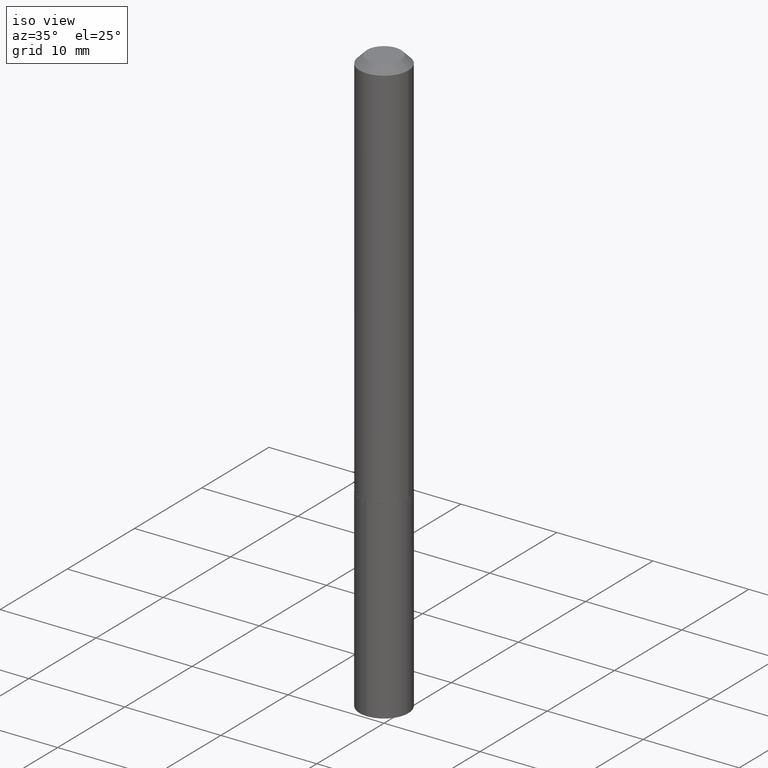
[diagram: clean part render]
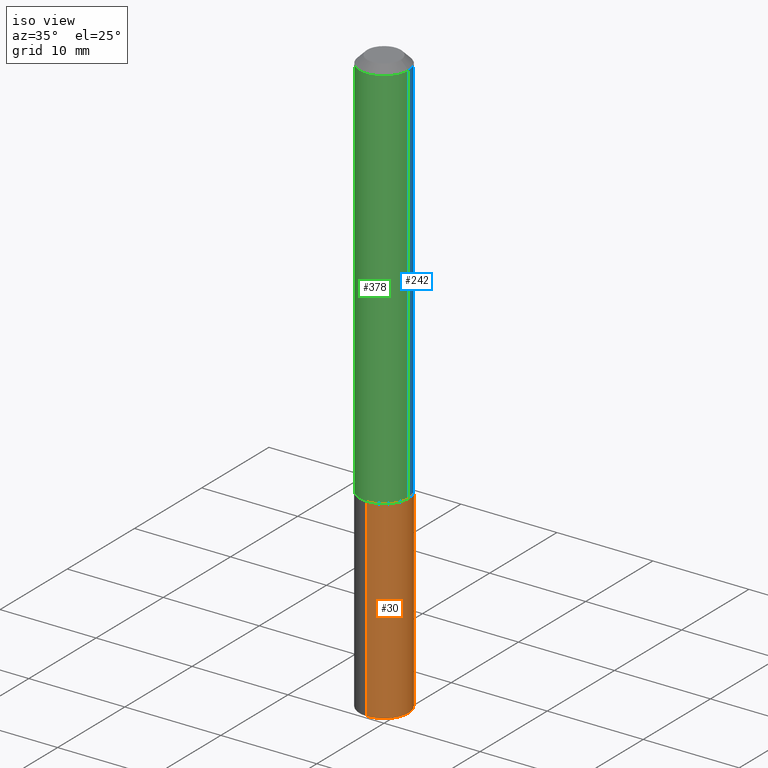
[diagram: same view with three faces highlighted in distinct colors, each labeled with its STEP entity id]
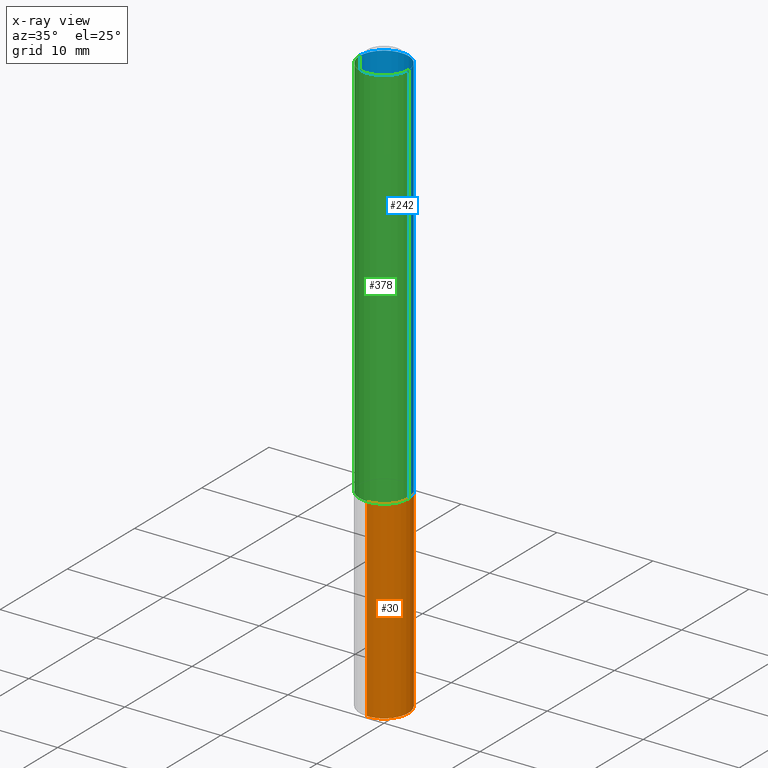
[diagram: x-ray of the same camera — body ghosted, the three highlighted faces saturated]
A machine part, iso view with three faces highlighted in distinct colors.
The next image is the same camera in x-ray (body ghosted, the three faces saturated) — at least one of them is partly hidden behind the body in this view.
Their STEP definitions:

[orange] entity #30 — the highlighted cylindrical surface (edge-blend (fillet) strip) has radius 2.5502 mm, axis along (-0, 0, 1).
#8 = CARTESIAN_POINT ( 'NONE',  ( 7.133849067031996748E-16, 0.1003999999999943549, -1.618100000000000316 ) ) ;
#12 = AXIS2_PLACEMENT_3D ( 'NONE', #341, #243, #218 ) ;
#13 = VECTOR ( 'NONE', #252, 39.37007874015748143 ) ;
#29 = CARTESIAN_POINT ( 'NONE',  ( 7.133849067031994776E-16, 0.1003999999999915516, -2.413997901079916186 ) ) ;
#30 = ADVANCED_FACE ( 'NONE', ( #274 ), #154, .T. ) ;
#51 = ORIENTED_EDGE ( 'NONE', *, *, #321, .T. ) ;
#70 = LINE ( 'NONE', #94, #263 ) ;
#73 = VERTEX_POINT ( 'NONE', #29 ) ;
#93 = CARTESIAN_POINT ( 'NONE',  ( 5.903278910358122984E-29, -8.428539829905512922E-15, -2.413997901079915742 ) ) ;
#94 = CARTESIAN_POINT ( 'NONE',  ( 7.133849067031800519E-16, 0.1003999999999943549, -1.618100000000000316 ) ) ;
#95 = EDGE_LOOP ( 'NONE', ( #51, #178, #260, #283 ) ) ;
#98 = EDGE_CURVE ( 'NONE', #347, #223, #182, .T. ) ;
#124 = CARTESIAN_POINT ( 'NONE',  ( -7.010894528396616337E-16, -0.1004000000000056514, -1.618099999999999872 ) ) ;
#152 = CARTESIAN_POINT ( 'NONE',  ( 3.957013075288169897E-29, -5.649565954382093886E-15, -1.618100000000000094 ) ) ;
#154 = CYLINDRICAL_SURFACE ( 'NONE', #12, 0.1004000000000000031 ) ;
#160 = LINE ( 'NONE', #124, #13 ) ;
#178 = ORIENTED_EDGE ( 'NONE', *, *, #367, .T. ) ;
#182 = CIRCLE ( 'NONE', #271, 0.1004000000000000031 ) ;
#183 = DIRECTION ( 'NONE',  ( -2.445371237226732199E-29, 3.491621063144860985E-15, 1.000000000000000000 ) ) ;
#216 = DIRECTION ( 'NONE',  ( -6.982962677686266711E-15, -1.000000000000000000, 2.720964137115799877E-15 ) ) ;
#218 = DIRECTION ( 'NONE',  ( -6.982962677686266711E-15, -1.000000000000000000, 2.720964137115799877E-15 ) ) ;
#221 = DIRECTION ( 'NONE',  ( -2.445371237226732199E-29, 3.491621063144860985E-15, 1.000000000000000000 ) ) ;
#222 = DIRECTION ( 'NONE',  ( -2.445371237226731919E-29, 3.491621063144860985E-15, 1.000000000000000000 ) ) ;
#223 = VERTEX_POINT ( 'NONE', #8 ) ;
#243 = DIRECTION ( 'NONE',  ( -2.445371237226732199E-29, 3.491621063144860985E-15, 1.000000000000000000 ) ) ;
#252 = DIRECTION ( 'NONE',  ( -2.445371237226731919E-29, 3.491621063144860985E-15, 1.000000000000000000 ) ) ;
#260 = ORIENTED_EDGE ( 'NONE', *, *, #98, .F. ) ;
#263 = VECTOR ( 'NONE', #222, 39.37007874015748143 ) ;
#271 = AXIS2_PLACEMENT_3D ( 'NONE', #152, #183, #216 ) ;
#274 = FACE_OUTER_BOUND ( 'NONE', #95, .T. ) ;
#283 = ORIENTED_EDGE ( 'NONE', *, *, #300, .F. ) ;
#296 = AXIS2_PLACEMENT_3D ( 'NONE', #93, #221, #345 ) ;
#300 = EDGE_CURVE ( 'NONE', #380, #347, #160, .T. ) ;
#321 = EDGE_CURVE ( 'NONE', #380, #73, #382, .T. ) ;
#341 = CARTESIAN_POINT ( 'NONE',  ( 3.957013075288169897E-29, -5.649565954382093886E-15, -1.618100000000000094 ) ) ;
#345 = DIRECTION ( 'NONE',  ( -6.982962677686266711E-15, -1.000000000000000000, 2.720964137115799877E-15 ) ) ;
#347 = VERTEX_POINT ( 'NONE', #372 ) ;
#367 = EDGE_CURVE ( 'NONE', #73, #223, #70, .T. ) ;
#372 = CARTESIAN_POINT ( 'NONE',  ( -7.010894528396616337E-16, -0.1004000000000056514, -1.618099999999999872 ) ) ;
#379 = CARTESIAN_POINT ( 'NONE',  ( -7.010894528396420108E-16, -0.1004000000000084269, -2.413997901079915742 ) ) ;
#380 = VERTEX_POINT ( 'NONE', #379 ) ;
#382 = CIRCLE ( 'NONE', #296, 0.1004000000000000031 ) ;

[blue] entity #242 — the highlighted cylindrical surface (edge-blend (fillet) strip) has radius 2.5502 mm, axis along (-0, 0, 1).
#10 = DIRECTION ( 'NONE',  ( -2.445468806185136597E-29, 3.491481338843145583E-15, 1.000000000000000000 ) ) ;
#14 = LINE ( 'NONE', #194, #286 ) ;
#31 = DIRECTION ( 'NONE',  ( -2.445468806185136597E-29, 3.491481338843145583E-15, 1.000000000000000000 ) ) ;
#37 = CARTESIAN_POINT ( 'NONE',  ( -0.1004000000000002113, -4.934435307009531477E-15, -1.617600000000000149 ) ) ;
#48 = VERTEX_POINT ( 'NONE', #338 ) ;
#59 = DIRECTION ( 'NONE',  ( -2.445468806185136877E-29, 3.491481338843145188E-15, 1.000000000000000000 ) ) ;
#80 = EDGE_LOOP ( 'NONE', ( #127, #193, #208, #297 ) ) ;
#96 = CARTESIAN_POINT ( 'NONE',  ( 0.1004000000000002113, -6.348909666552376614E-15, -1.617600000000000149 ) ) ;
#102 = DIRECTION ( 'NONE',  ( -2.445468806185136597E-29, 3.491481338843145583E-15, 1.000000000000000000 ) ) ;
#105 = CIRCLE ( 'NONE', #325, 0.1004000000000000170 ) ;
#106 = AXIS2_PLACEMENT_3D ( 'NONE', #322, #102, #254 ) ;
#114 = VERTEX_POINT ( 'NONE', #37 ) ;
#123 = EDGE_CURVE ( 'NONE', #209, #48, #246, .T. ) ;
#127 = ORIENTED_EDGE ( 'NONE', *, *, #294, .T. ) ;
#149 = DIRECTION ( 'NONE',  ( 1.000000000000000000, -6.982962677686266711E-15, 0.000000000000000000 ) ) ;
#165 = EDGE_CURVE ( 'NONE', #48, #390, #105, .T. ) ;
#184 = CARTESIAN_POINT ( 'NONE',  ( 7.642090019328601786E-31, -1.091087918388490144E-16, -0.03125000000000020123 ) ) ;
#189 = DIRECTION ( 'NONE',  ( 1.000000000000000000, -6.982962677686267499E-15, 0.000000000000000000 ) ) ;
#193 = ORIENTED_EDGE ( 'NONE', *, *, #197, .T. ) ;
#194 = CARTESIAN_POINT ( 'NONE',  ( -0.1004000000000001142, 7.133849067031413977E-16, -4.938610830615930599E-30 ) ) ;
#197 = EDGE_CURVE ( 'NONE', #114, #390, #14, .T. ) ;
#201 = CARTESIAN_POINT ( 'NONE',  ( -0.1004000000000000170, -2.165079596072618653E-15, -0.03125000000000020123 ) ) ;
#206 = CIRCLE ( 'NONE', #281, 0.1004000000000002113 ) ;
#208 = ORIENTED_EDGE ( 'NONE', *, *, #165, .F. ) ;
#209 = VERTEX_POINT ( 'NONE', #96 ) ;
#242 = ADVANCED_FACE ( 'NONE', ( #257 ), #376, .T. ) ;
#246 = LINE ( 'NONE', #368, #295 ) ;
#254 = DIRECTION ( 'NONE',  ( 1.000000000000000000, -6.982962677686266711E-15, 4.876176775795935232E-29 ) ) ;
#257 = FACE_OUTER_BOUND ( 'NONE', #80, .T. ) ;
#258 = CARTESIAN_POINT ( 'NONE',  ( 3.955790340885077095E-29, -5.647820213712673171E-15, -1.617600000000000149 ) ) ;
#281 = AXIS2_PLACEMENT_3D ( 'NONE', #258, #10, #189 ) ;
#286 = VECTOR ( 'NONE', #344, 39.37007874015748143 ) ;
#294 = EDGE_CURVE ( 'NONE', #209, #114, #206, .T. ) ;
#295 = VECTOR ( 'NONE', #59, 39.37007874015748143 ) ;
#297 = ORIENTED_EDGE ( 'NONE', *, *, #123, .F. ) ;
#322 = CARTESIAN_POINT ( 'NONE',  ( 0.000000000000000000, 0.000000000000000000, 0.000000000000000000 ) ) ;
#325 = AXIS2_PLACEMENT_3D ( 'NONE', #184, #31, #149 ) ;
#338 = CARTESIAN_POINT ( 'NONE',  ( 0.1004000000000000170, -8.101982446785503746E-16, -0.03125000000000020123 ) ) ;
#344 = DIRECTION ( 'NONE',  ( -2.445468806185136877E-29, 3.491481338843145188E-15, 1.000000000000000000 ) ) ;
#368 = CARTESIAN_POINT ( 'NONE',  ( 0.1004000000000001142, -7.010894528397019642E-16, 4.895681482899124760E-30 ) ) ;
#376 = CYLINDRICAL_SURFACE ( 'NONE', #106, 0.1004000000000001142 ) ;
#390 = VERTEX_POINT ( 'NONE', #201 ) ;

[green] entity #378 — the highlighted cylindrical surface (edge-blend (fillet) strip) has radius 2.5502 mm, axis along (-0, 0, 1).
#1 = DIRECTION ( 'NONE',  ( -2.445468806185136597E-29, 3.491481338843145583E-15, 1.000000000000000000 ) ) ;
#14 = LINE ( 'NONE', #194, #286 ) ;
#21 = DIRECTION ( 'NONE',  ( -2.445468806185136597E-29, 3.491481338843145583E-15, 1.000000000000000000 ) ) ;
#37 = CARTESIAN_POINT ( 'NONE',  ( -0.1004000000000002113, -4.934435307009531477E-15, -1.617600000000000149 ) ) ;
#39 = DIRECTION ( 'NONE',  ( -2.445468806185136597E-29, 3.491481338843145583E-15, 1.000000000000000000 ) ) ;
#48 = VERTEX_POINT ( 'NONE', #338 ) ;
#59 = DIRECTION ( 'NONE',  ( -2.445468806185136877E-29, 3.491481338843145188E-15, 1.000000000000000000 ) ) ;
#83 = ORIENTED_EDGE ( 'NONE', *, *, #323, .F. ) ;
#96 = CARTESIAN_POINT ( 'NONE',  ( 0.1004000000000002113, -6.348909666552376614E-15, -1.617600000000000149 ) ) ;
#108 = ORIENTED_EDGE ( 'NONE', *, *, #197, .F. ) ;
#114 = VERTEX_POINT ( 'NONE', #37 ) ;
#115 = EDGE_CURVE ( 'NONE', #114, #209, #255, .T. ) ;
#122 = CARTESIAN_POINT ( 'NONE',  ( 3.955790340885077095E-29, -5.647820213712673171E-15, -1.617600000000000149 ) ) ;
#123 = EDGE_CURVE ( 'NONE', #209, #48, #246, .T. ) ;
#146 = AXIS2_PLACEMENT_3D ( 'NONE', #314, #39, #158 ) ;
#158 = DIRECTION ( 'NONE',  ( 1.000000000000000000, -6.982962677686266711E-15, 0.000000000000000000 ) ) ;
#166 = ORIENTED_EDGE ( 'NONE', *, *, #115, .T. ) ;
#194 = CARTESIAN_POINT ( 'NONE',  ( -0.1004000000000001142, 7.133849067031413977E-16, -4.938610830615930599E-30 ) ) ;
#197 = EDGE_CURVE ( 'NONE', #114, #390, #14, .T. ) ;
#201 = CARTESIAN_POINT ( 'NONE',  ( -0.1004000000000000170, -2.165079596072618653E-15, -0.03125000000000020123 ) ) ;
#209 = VERTEX_POINT ( 'NONE', #96 ) ;
#224 = AXIS2_PLACEMENT_3D ( 'NONE', #284, #21, #383 ) ;
#231 = ORIENTED_EDGE ( 'NONE', *, *, #123, .T. ) ;
#246 = LINE ( 'NONE', #368, #295 ) ;
#250 = AXIS2_PLACEMENT_3D ( 'NONE', #122, #1, #272 ) ;
#255 = CIRCLE ( 'NONE', #250, 0.1004000000000002113 ) ;
#256 = CIRCLE ( 'NONE', #146, 0.1004000000000000170 ) ;
#266 = EDGE_LOOP ( 'NONE', ( #108, #166, #231, #83 ) ) ;
#272 = DIRECTION ( 'NONE',  ( 1.000000000000000000, -6.982962677686267499E-15, 0.000000000000000000 ) ) ;
#284 = CARTESIAN_POINT ( 'NONE',  ( 0.000000000000000000, 0.000000000000000000, 0.000000000000000000 ) ) ;
#286 = VECTOR ( 'NONE', #344, 39.37007874015748143 ) ;
#295 = VECTOR ( 'NONE', #59, 39.37007874015748143 ) ;
#314 = CARTESIAN_POINT ( 'NONE',  ( 7.642090019328601786E-31, -1.091087918388490144E-16, -0.03125000000000020123 ) ) ;
#319 = CYLINDRICAL_SURFACE ( 'NONE', #224, 0.1004000000000001142 ) ;
#323 = EDGE_CURVE ( 'NONE', #390, #48, #256, .T. ) ;
#338 = CARTESIAN_POINT ( 'NONE',  ( 0.1004000000000000170, -8.101982446785503746E-16, -0.03125000000000020123 ) ) ;
#344 = DIRECTION ( 'NONE',  ( -2.445468806185136877E-29, 3.491481338843145188E-15, 1.000000000000000000 ) ) ;
#346 = FACE_OUTER_BOUND ( 'NONE', #266, .T. ) ;
#368 = CARTESIAN_POINT ( 'NONE',  ( 0.1004000000000001142, -7.010894528397019642E-16, 4.895681482899124760E-30 ) ) ;
#378 = ADVANCED_FACE ( 'NONE', ( #346 ), #319, .T. ) ;
#383 = DIRECTION ( 'NONE',  ( 1.000000000000000000, -6.982962677686266711E-15, 4.876176775795935232E-29 ) ) ;
#390 = VERTEX_POINT ( 'NONE', #201 ) ;